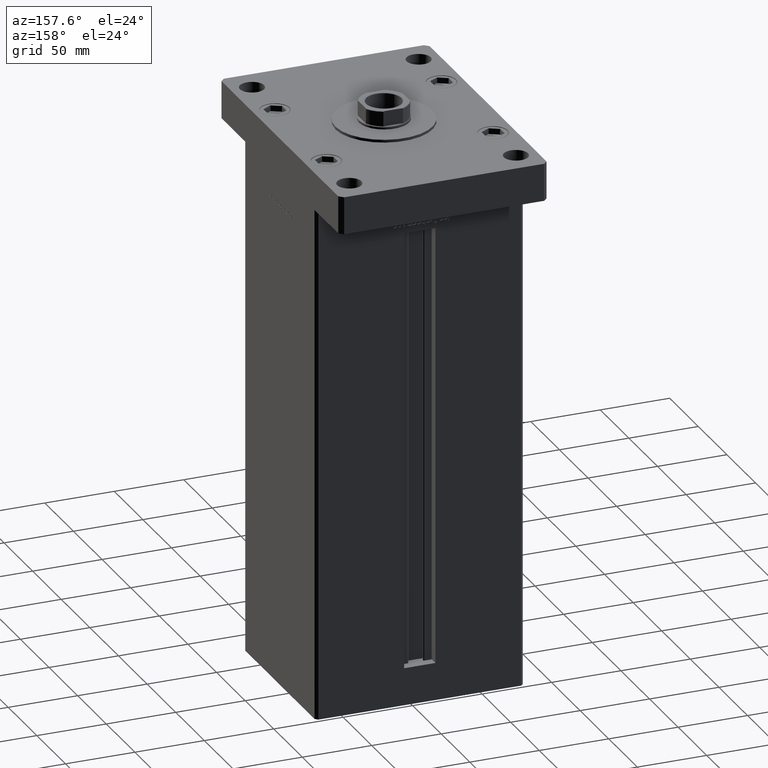
[diagram: clean part render]
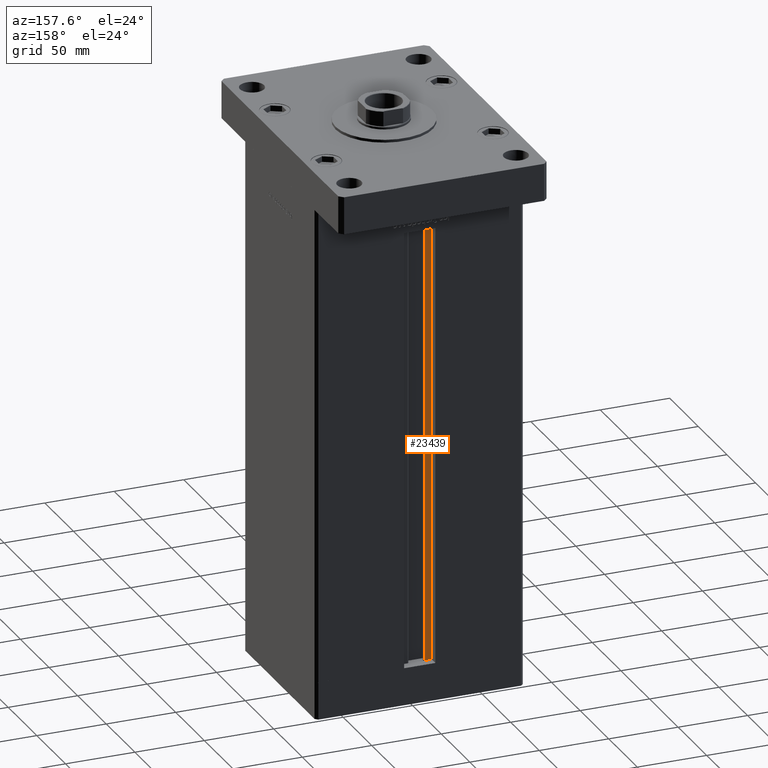
[diagram: same view with one face highlighted and labeled with its STEP entity id]
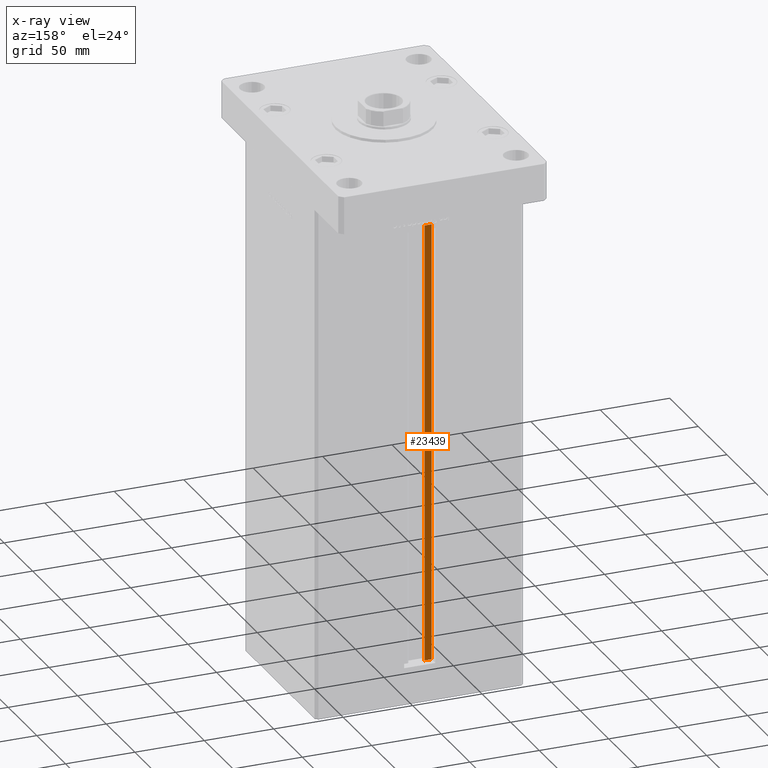
[diagram: x-ray of the same camera — body ghosted, the highlighted face saturated]
A machine part, auxiliary view. The second image highlights one B-rep face of the part: STEP entity #23439.
The next image is the same camera in x-ray: the body ghosted, the highlighted face saturated — about 0% of this face is hidden behind the body in this view.
In plain terms, the highlighted planar face has unit normal (0, -1, 0).
Its self-contained STEP definition (entity closure, byte-faithful):
#375 = ORIENTED_EDGE ( 'NONE', *, *, #50615, .F. ) ;
#855 = FACE_OUTER_BOUND ( 'NONE', #39684, .T. ) ;
#3001 = LINE ( 'NONE', #27111, #21566 ) ;
#3860 = VERTEX_POINT ( 'NONE', #34865 ) ;
#6179 = CARTESIAN_POINT ( 'NONE',  ( -6.183333333334001480, 55.99999999999999289, 0.000000000000000000 ) ) ;
#8179 = CARTESIAN_POINT ( 'NONE',  ( -6.183333333334001480, 55.99999999999999289, 0.000000000000000000 ) ) ;
#10387 = VECTOR ( 'NONE', #30310, 1000.000000000000000 ) ;
#12491 = VECTOR ( 'NONE', #18789, 1000.000000000000000 ) ;
#13409 = ORIENTED_EDGE ( 'NONE', *, *, #33955, .F. ) ;
#13492 = EDGE_CURVE ( 'NONE', #31861, #3860, #3001, .T. ) ;
#13572 = DIRECTION ( 'NONE',  ( 0.000000000000000000, -1.000000000000000000, -0.000000000000000000 ) ) ;
#17354 = PLANE ( 'NONE',  #42544 ) ;
#18789 = DIRECTION ( 'NONE',  ( -0.000000000000000000, -0.000000000000000000, 1.000000000000000000 ) ) ;
#18879 = DIRECTION ( 'NONE',  ( 1.000000000000000000, -0.000000000000000000, -0.000000000000000000 ) ) ;
#19007 = VERTEX_POINT ( 'NONE', #22167 ) ;
#21566 = VECTOR ( 'NONE', #52559, 1000.000000000000000 ) ;
#22167 = CARTESIAN_POINT ( 'NONE',  ( -11.25000000000000178, 55.99999999999999289, 317.0000000000000000 ) ) ;
#23439 = ADVANCED_FACE ( 'NONE', ( #855 ), #17354, .F. ) ;
#23507 = CARTESIAN_POINT ( 'NONE',  ( -11.25000000000000178, 55.99999999999999289, 0.000000000000000000 ) ) ;
#23819 = VECTOR ( 'NONE', #18879, 1000.000000000000000 ) ;
#27111 = CARTESIAN_POINT ( 'NONE',  ( -6.183333333334001480, 55.99999999999999289, 0.000000000000000000 ) ) ;
#27732 = LINE ( 'NONE', #38863, #12491 ) ;
#29544 = EDGE_CURVE ( 'NONE', #50770, #19007, #27732, .T. ) ;
#30310 = DIRECTION ( 'NONE',  ( -1.000000000000000000, 0.000000000000000000, 0.000000000000000000 ) ) ;
#31861 = VERTEX_POINT ( 'NONE', #8179 ) ;
#33955 = EDGE_CURVE ( 'NONE', #50770, #31861, #39743, .T. ) ;
#34865 = CARTESIAN_POINT ( 'NONE',  ( -6.183333333334001480, 55.99999999999999289, 317.0000000000000000 ) ) ;
#36974 = ORIENTED_EDGE ( 'NONE', *, *, #13492, .F. ) ;
#38863 = CARTESIAN_POINT ( 'NONE',  ( -11.25000000000000178, 55.99999999999999289, 0.000000000000000000 ) ) ;
#39684 = EDGE_LOOP ( 'NONE', ( #36974, #13409, #52917, #375 ) ) ;
#39743 = LINE ( 'NONE', #6179, #23819 ) ;
#41719 = CARTESIAN_POINT ( 'NONE',  ( 0.000000000000000000, 55.99999999999999289, 317.0000000000000000 ) ) ;
#41977 = LINE ( 'NONE', #41719, #10387 ) ;
#42544 = AXIS2_PLACEMENT_3D ( 'NONE', #50665, #13572, #42560 ) ;
#42560 = DIRECTION ( 'NONE',  ( 0.000000000000000000, 0.000000000000000000, -1.000000000000000000 ) ) ;
#50615 = EDGE_CURVE ( 'NONE', #3860, #19007, #41977, .T. ) ;
#50665 = CARTESIAN_POINT ( 'NONE',  ( -6.183333333334001480, 55.99999999999999289, 0.000000000000000000 ) ) ;
#50770 = VERTEX_POINT ( 'NONE', #23507 ) ;
#52559 = DIRECTION ( 'NONE',  ( -0.000000000000000000, -0.000000000000000000, 1.000000000000000000 ) ) ;
#52917 = ORIENTED_EDGE ( 'NONE', *, *, #29544, .T. ) ;